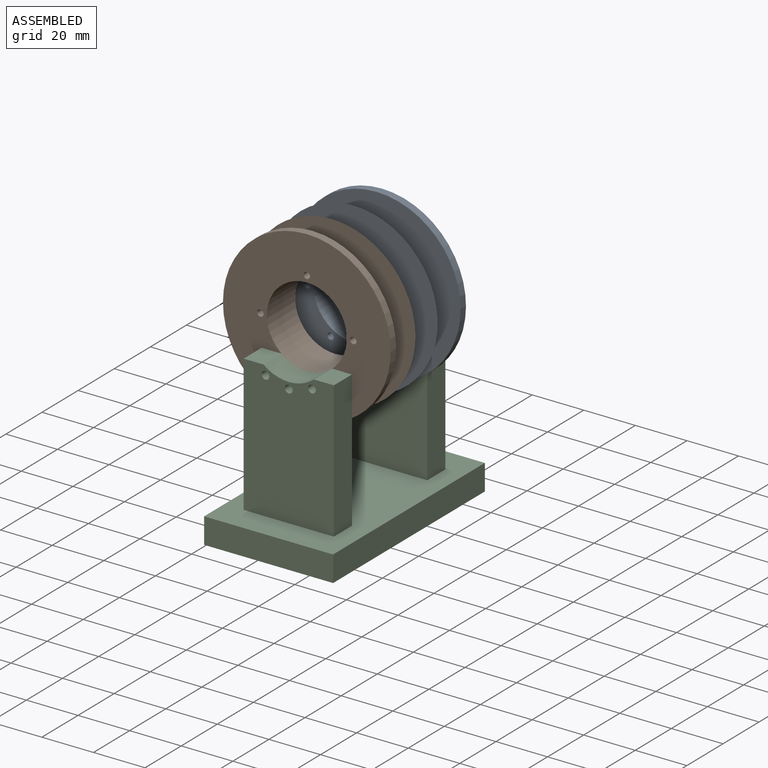
[diagram: assembled view]
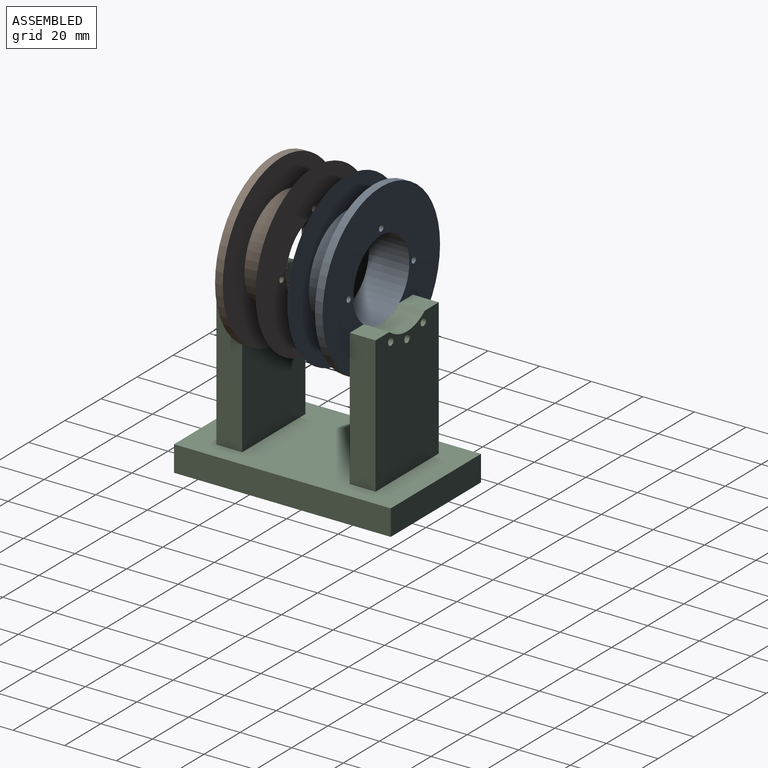
[diagram: assembled view, second angle]
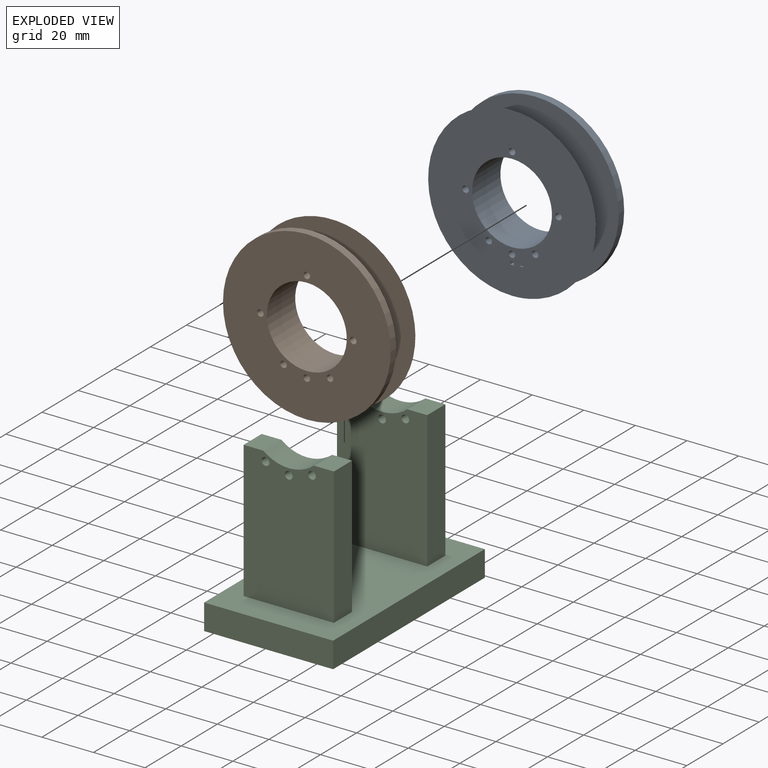
[diagram: exploded view]
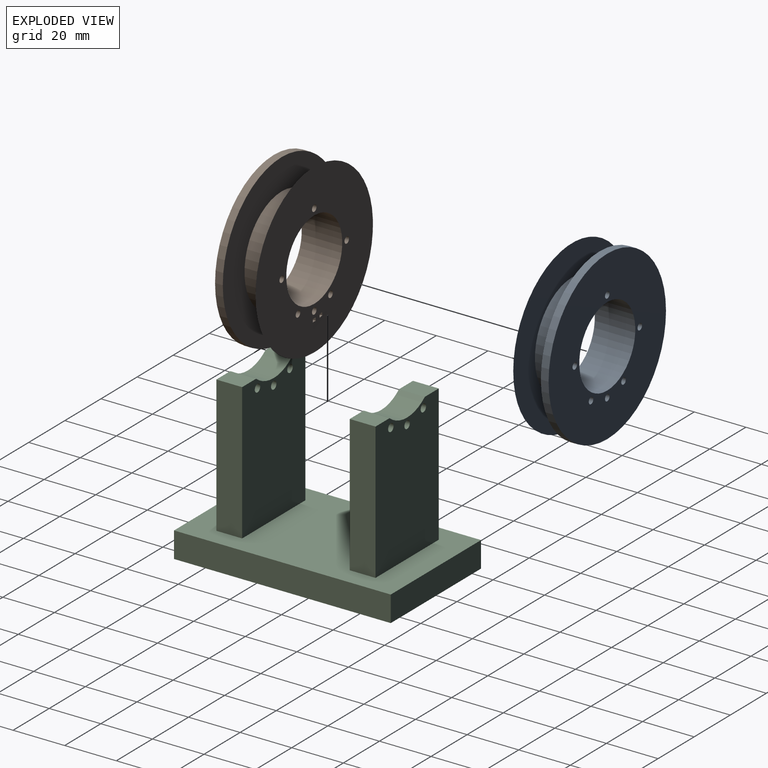
[diagram: exploded view, second angle]
ASSEMBLY  parts=3 mates=2
PART A: 24 faces, bbox 195x145.7x195 mm
  f0: plane 195x195mm, normal (0,-1,0), area 1978.6mm2, adj f1,f16,f17,f18,f19,f20,f21,f22
  f1: cylinder r=20.5mm len=41mm, axis (0,1,0), area 1378.2mm2, adj f0,f2
  f2: plane 65x65mm, normal (0,1,0), area 1998.1mm2, adj f1,f3
  f3: cylinder r=32.5mm len=65mm, axis (0,1,0), area 612.6mm2, adj f2,f4
  f4: plane 65x65mm, normal (0,-1,0), area 2534.1mm2, adj f3,f5,f10,f11,f12,f13,f14,f15
  f5: cylinder r=1.25mm len=15.7mm, axis (0,-1,0), area 123.3mm2, adj f4,f6
  f6: plane 195x195mm, normal (0,1,0), area 2530.5mm2, adj f5,f7,f9,f10,f11,f12,f13,f14
  f7: plane 1.48x0.75mm, normal (0.17,0,0.98), area 1.1mm2, adj f6,f8,f16,f18
  f8: plane 10.91x3.37mm, normal (0,-1,0), area 16.2mm2, adj f7,f16,f17,f18
  f9: cylinder r=32.5mm len=64.37mm, axis (0,1,0), area 0mm2, adj f6
  f10: cylinder r=1.25mm len=15.7mm, axis (0,-1,0), area 123.3mm2, adj f4,f6
  f11: cylinder r=1.25mm len=15.7mm, axis (0,-1,0), area 123.3mm2, adj f4,f6
  f12: cylinder r=1.25mm len=15.7mm, axis (0,-1,0), area 123.3mm2, adj f4,f6
  f13: cylinder r=1.25mm len=15.7mm, axis (0,-1,0), area 123.3mm2, adj f4,f6
  f14: cylinder r=15.5mm len=31mm, axis (0,1,0), area 1529mm2, adj f4,f6
  f15: cylinder r=1.25mm len=15.7mm, axis (0,-1,0), area 123.3mm2, adj f4,f6
  f16: plane 141.84x132.1mm, normal (0.98,0,-0.17), area 15.9mm2, adj f0,f6,f7,f8,f17,f19
  f17: cylinder r=32.5mm len=64.37mm, axis (0,1,0), area 61.9mm2, adj f0,f8,f16,f18
  f18: plane 11.83x2.1mm, normal (-0.98,0,0.17), area 15.9mm2, adj f0,f6,f7,f8,f17,f19
  f19: plane 2x1.48mm, normal (-0.17,0,-0.98), area 3mm2, adj f0,f6,f16,f18
  f20: plane 2x1.2mm, normal (1,0,0), area 2.4mm2, adj f0,f6,f21,f23
  f21: plane 2x1.5mm, normal (0,0,1), area 3mm2, adj f0,f6,f20,f22
  f22: plane 2x1.2mm, normal (-1,0,0), area 2.4mm2, adj f0,f6,f21,f23
  f23: plane 2x1.5mm, normal (0,0,-1), area 3mm2, adj f0,f6,f20,f22
PART B: same geometry as A
PART C: 26 faces, bbox 50x84x63 mm
  f0: cylinder r=15.5mm len=19.62mm, axis (0,1,0), area 212.5mm2, adj f1,f2,f7,f9
  f1: plane 53x35mm, normal (0,-1,0), area 1786.9mm2, adj f0,f3,f4,f5,f6,f7,f8,f9
  f2: plane 53x35mm, normal (0,1,0), area 1786.9mm2, adj f0,f3,f4,f5,f6,f7,f8,f9
  f3: cylinder r=1.5mm len=10mm, axis (0,1,0), area 94.2mm2, adj f1,f2
  f4: cylinder r=1.5mm len=10mm, axis (0,1,0), area 94.2mm2, adj f1,f2
  f5: cylinder r=1.5mm len=10mm, axis (0,1,0), area 94.2mm2, adj f1,f2
  f6: plane 53x10mm, normal (1,0,0), area 530mm2, adj f1,f2,f7,f10
  f7: plane 10x7.69mm, normal (0,0,1), area 76.9mm2, adj f0,f1,f2,f6
  f8: plane 53x10mm, normal (-1,0,0), area 530mm2, adj f1,f2,f9,f10
  f9: plane 10x7.69mm, normal (0,0,1), area 76.9mm2, adj f0,f1,f2,f8
  f10: plane 84x50mm, normal (0,0,1), area 3500mm2, adj f1,f2,f6,f8,f12,f13,f17,f19
  f11: cylinder r=15.5mm len=19.62mm, axis (0,-1,0), area 212.5mm2, adj f12,f13,f18,f20
  f12: plane 53x35mm, normal (0,1,0), area 1786.9mm2, adj f10,f11,f14,f15,f16,f17,f18,f19
  f13: plane 53x35mm, normal (0,-1,0), area 1786.9mm2, adj f10,f11,f14,f15,f16,f17,f18,f19
  f14: cylinder r=1.5mm len=10mm, axis (0,-1,0), area 94.2mm2, adj f12,f13
  f15: cylinder r=1.5mm len=10mm, axis (0,-1,0), area 94.2mm2, adj f12,f13
  f16: cylinder r=1.5mm len=10mm, axis (0,-1,0), area 94.2mm2, adj f12,f13
  f17: plane 53x10mm, normal (1,0,0), area 530mm2, adj f10,f12,f13,f18
  f18: plane 10x7.69mm, normal (0,0,1), area 76.9mm2, adj f11,f12,f13,f17
  f19: plane 53x10mm, normal (-1,0,0), area 530mm2, adj f10,f12,f13,f20
  f20: plane 10x7.69mm, normal (0,0,1), area 76.9mm2, adj f11,f12,f13,f19
  f21: plane 50x10mm, normal (0,-1,0), area 500mm2, adj f10,f22,f24,f25
  f22: plane 84x50mm, normal (0,0,-1), area 4200mm2, adj f21,f23,f24,f25
  f23: plane 50x10mm, normal (0,1,0), area 500mm2, adj f10,f22,f24,f25
  f24: plane 84x10mm, normal (1,0,0), area 840mm2, adj f10,f21,f22,f23
  f25: plane 84x10mm, normal (-1,0,0), area 840mm2, adj f10,f21,f22,f23
PLACE A rot(axis=(0,0,1),180deg) t=(4.27,-1.98,20.94)mm
PLACE B t=(4.27,-12.28,20.94)mm
PLACE C t=(4.27,-7.13,20.94)mm
MATE pin_slot A.f12 <-> C.f3  axis (0,1,0) through (4.27,13.72,2.94)mm
MATE pin_slot B.f12 <-> C.f3  axis (0,-1,0) through (4.27,-27.98,2.94)mm
